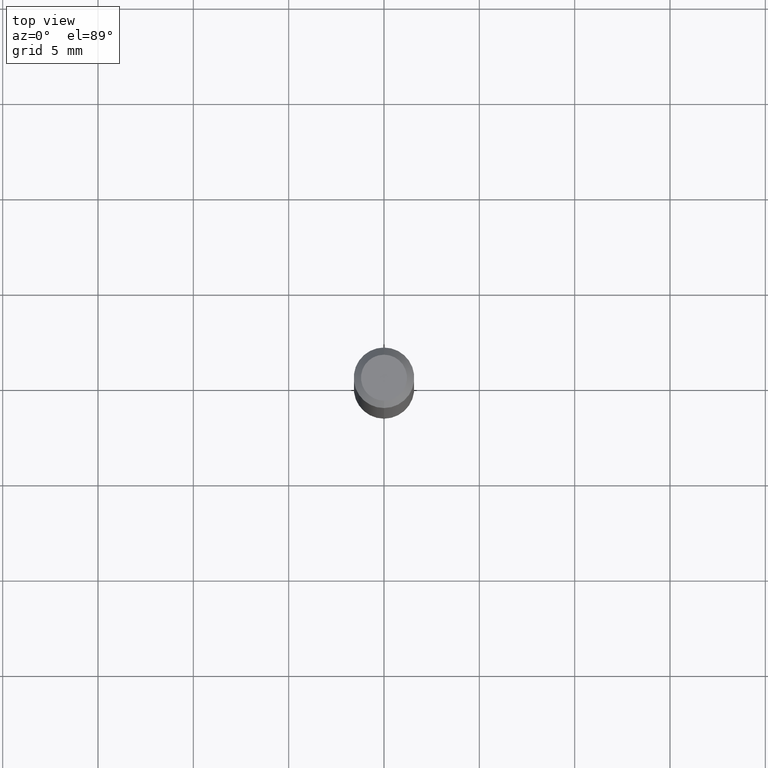
[diagram: clean part render]
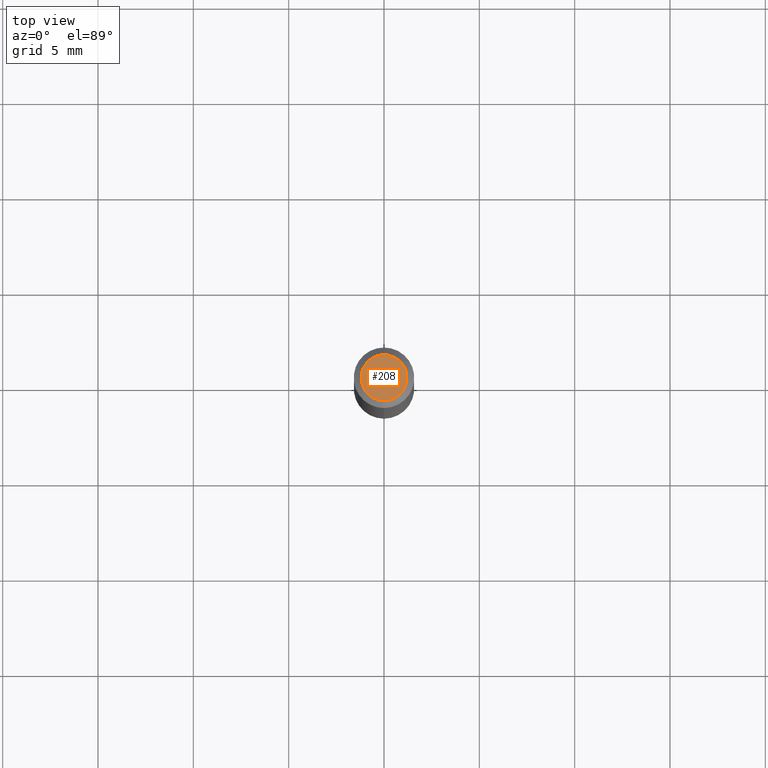
[diagram: same view with one face highlighted and labeled with its STEP entity id]
A machine part, top view. The second image highlights one B-rep face of the part: STEP entity #208.
In plain terms, the highlighted planar face has unit normal (0, -0, -1).
Its self-contained STEP definition (entity closure, byte-faithful):
#8 = AXIS2_PLACEMENT_3D ( 'NONE', #436, #467, #81 ) ;
#9 = DIRECTION ( 'NONE',  ( -2.445467008868060164E-29, 3.491483912703496307E-15, 1.000000000000000000 ) ) ;
#19 = EDGE_LOOP ( 'NONE', ( #348, #333 ) ) ;
#23 = AXIS2_PLACEMENT_3D ( 'NONE', #59, #9, #367 ) ;
#28 = EDGE_CURVE ( 'NONE', #163, #117, #68, .T. ) ;
#51 = DIRECTION ( 'NONE',  ( -2.445467008868060164E-29, 3.491483912703496307E-15, 1.000000000000000000 ) ) ;
#59 = CARTESIAN_POINT ( 'NONE',  ( 8.024722357120367576E-45, -1.145719362076640405E-30, -3.281468254537930218E-16 ) ) ;
#68 = CIRCLE ( 'NONE', #23, 0.04749999999999999362 ) ;
#81 = DIRECTION ( 'NONE',  ( 6.982962677686265922E-15, 1.000000000000000000, -3.491483912703496307E-15 ) ) ;
#117 = VERTEX_POINT ( 'NONE', #328 ) ;
#135 = CARTESIAN_POINT ( 'NONE',  ( 3.840629472727447874E-16, 0.04749999999999999362, -4.939923113072090255E-16 ) ) ;
#137 = AXIS2_PLACEMENT_3D ( 'NONE', #289, #51, #173 ) ;
#156 = CIRCLE ( 'NONE', #137, 0.04749999999999999362 ) ;
#163 = VERTEX_POINT ( 'NONE', #135 ) ;
#173 = DIRECTION ( 'NONE',  ( -6.982962677686266711E-15, -1.000000000000000000, 3.491483912703496307E-15 ) ) ;
#208 = ADVANCED_FACE ( 'NONE', ( #350 ), #398, .F. ) ;
#289 = CARTESIAN_POINT ( 'NONE',  ( 8.024722357120367576E-45, -1.145719362076640405E-30, -3.281468254537930218E-16 ) ) ;
#328 = CARTESIAN_POINT ( 'NONE',  ( -3.773273898774340269E-16, -0.04749999999999999362, -1.623013396003769689E-16 ) ) ;
#333 = ORIENTED_EDGE ( 'NONE', *, *, #444, .T. ) ;
#348 = ORIENTED_EDGE ( 'NONE', *, *, #28, .T. ) ;
#350 = FACE_OUTER_BOUND ( 'NONE', #19, .T. ) ;
#367 = DIRECTION ( 'NONE',  ( -6.982962677686266711E-15, -1.000000000000000000, 3.491483912703496307E-15 ) ) ;
#398 = PLANE ( 'NONE',  #8 ) ;
#436 = CARTESIAN_POINT ( 'NONE',  ( 3.316907271900976096E-16, 0.04749999999999999362, -3.299188985803125638E-16 ) ) ;
#444 = EDGE_CURVE ( 'NONE', #117, #163, #156, .T. ) ;
#467 = DIRECTION ( 'NONE',  ( 2.445467008868059603E-29, -3.491483912703496307E-15, -1.000000000000000000 ) ) ;